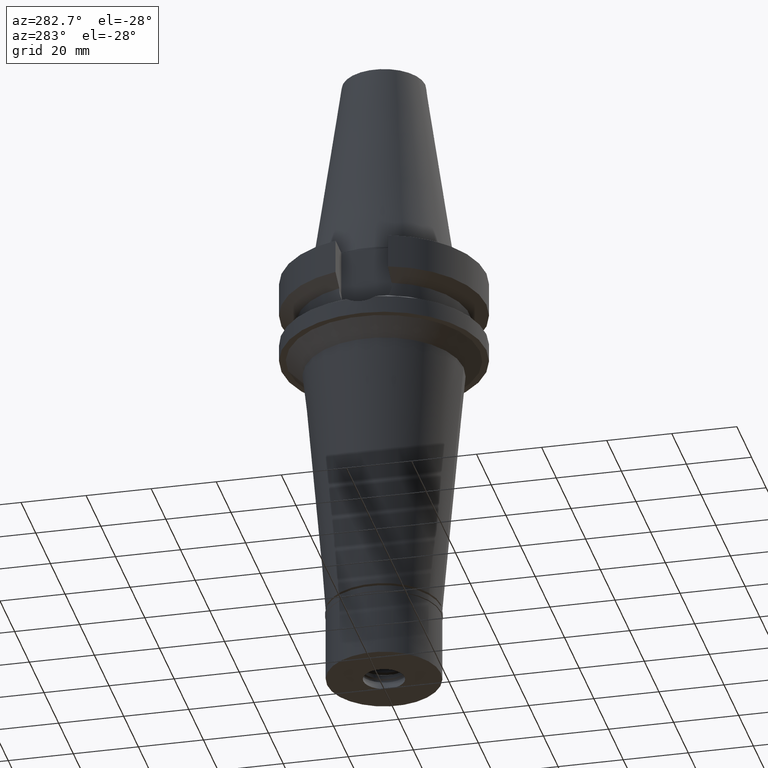
[diagram: clean part render]
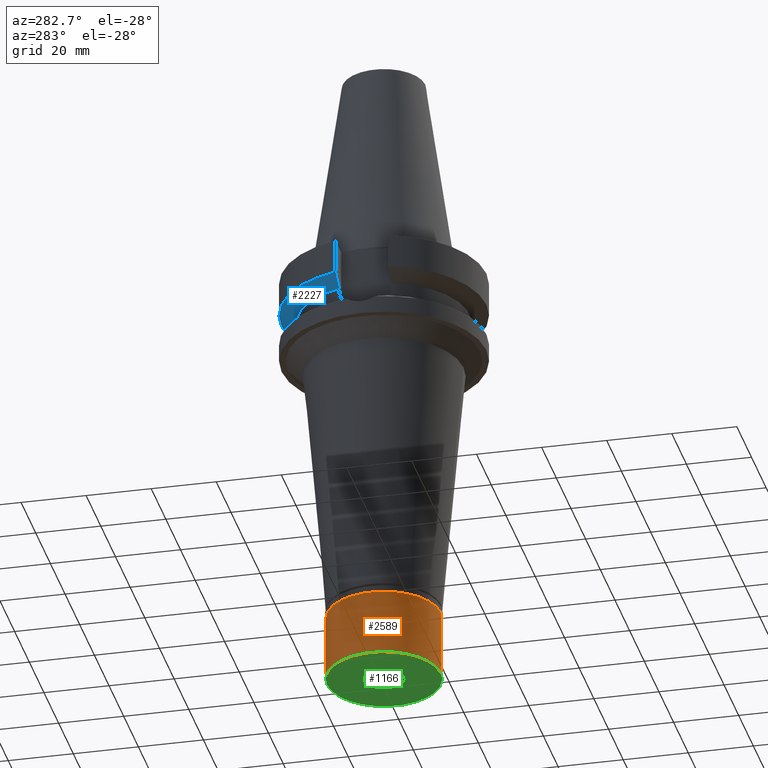
[diagram: same view with three faces highlighted in distinct colors, each labeled with its STEP entity id]
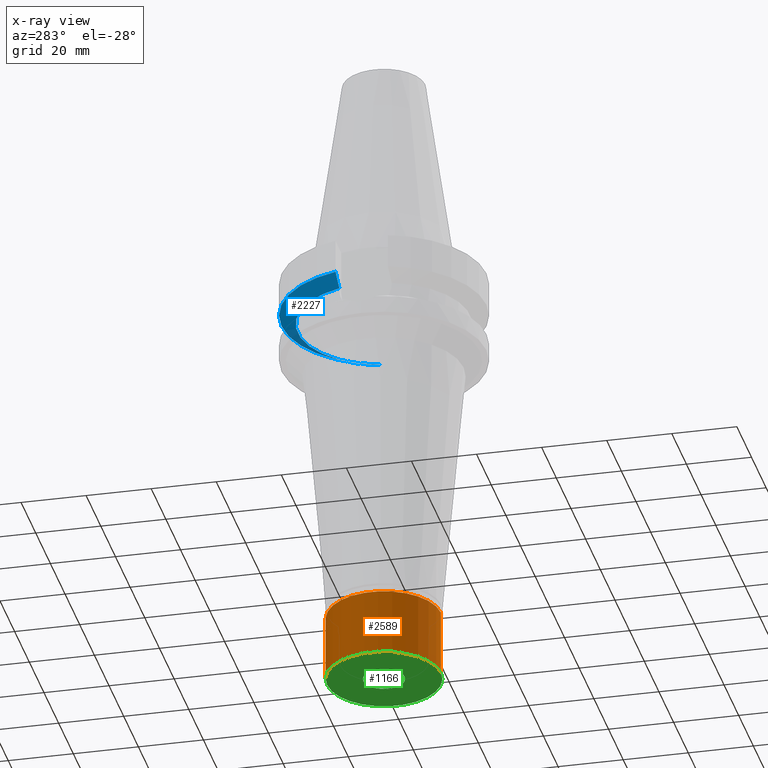
[diagram: x-ray of the same camera — body ghosted, the three highlighted faces saturated]
A machine part, auxiliary view with three faces highlighted in distinct colors.
The next image is the same camera in x-ray (body ghosted, the three faces saturated) — at least one of them is partly hidden behind the body in this view.
Their STEP definitions:

[orange] entity #2589 — the highlighted cylindrical surface (partial cylindrical patch) has radius 17.5 mm, axis along (0, 0, -1).
#40 = EDGE_LOOP ( 'NONE', ( #2984, #1768, #2172, #1726 ) ) ;
#71 = CARTESIAN_POINT ( 'NONE',  ( 0.0000000000000000000, -17.50000000000000000, -2.000000000000000000 ) ) ;
#181 = CARTESIAN_POINT ( 'NONE',  ( 0.0000000000000000000, 17.50000000000000000, -22.50000000000000000 ) ) ;
#218 = VERTEX_POINT ( 'NONE', #1744 ) ;
#267 = AXIS2_PLACEMENT_3D ( 'NONE', #785, #1766, #541 ) ;
#293 = CARTESIAN_POINT ( 'NONE',  ( 0.0000000000000000000, 17.50000000000000000, -2.000000000000000000 ) ) ;
#408 = DIRECTION ( 'NONE',  ( 0.0000000000000000000, 0.0000000000000000000, -1.000000000000000000 ) ) ;
#455 = LINE ( 'NONE', #2659, #3036 ) ;
#471 = VERTEX_POINT ( 'NONE', #2582 ) ;
#477 = CARTESIAN_POINT ( 'NONE',  ( 0.0000000000000000000, 0.0000000000000000000, 0.0000000000000000000 ) ) ;
#494 = VERTEX_POINT ( 'NONE', #181 ) ;
#541 = DIRECTION ( 'NONE',  ( 0.0000000000000000000, 1.000000000000000000, 0.0000000000000000000 ) ) ;
#556 = LINE ( 'NONE', #293, #2967 ) ;
#737 = DIRECTION ( 'NONE',  ( 0.0000000000000000000, -1.000000000000000000, 0.0000000000000000000 ) ) ;
#785 = CARTESIAN_POINT ( 'NONE',  ( 0.0000000000000000000, 0.0000000000000000000, -22.50000000000000000 ) ) ;
#920 = DIRECTION ( 'NONE',  ( 0.0000000000000000000, 0.0000000000000000000, -1.000000000000000000 ) ) ;
#1152 = CIRCLE ( 'NONE', #267, 17.50000000000000000 ) ;
#1208 = CYLINDRICAL_SURFACE ( 'NONE', #2407, 17.50000000000000000 ) ;
#1252 = VERTEX_POINT ( 'NONE', #71 ) ;
#1279 = EDGE_CURVE ( 'NONE', #494, #218, #1152, .T. ) ;
#1362 = DIRECTION ( 'NONE',  ( 0.0000000000000000000, -1.000000000000000000, 0.0000000000000000000 ) ) ;
#1534 = DIRECTION ( 'NONE',  ( 0.0000000000000000000, 0.0000000000000000000, -1.000000000000000000 ) ) ;
#1681 = EDGE_CURVE ( 'NONE', #1252, #218, #455, .T. ) ;
#1726 = ORIENTED_EDGE ( 'NONE', *, *, #2699, .T. ) ;
#1744 = CARTESIAN_POINT ( 'NONE',  ( 0.0000000000000000000, -17.50000000000000000, -22.50000000000000000 ) ) ;
#1766 = DIRECTION ( 'NONE',  ( 0.0000000000000000000, 0.0000000000000000000, 1.000000000000000000 ) ) ;
#1768 = ORIENTED_EDGE ( 'NONE', *, *, #1681, .F. ) ;
#1824 = CARTESIAN_POINT ( 'NONE',  ( 0.0000000000000000000, 0.0000000000000000000, -2.000000000000000000 ) ) ;
#1919 = EDGE_CURVE ( 'NONE', #1252, #471, #2121, .T. ) ;
#2029 = DIRECTION ( 'NONE',  ( 0.0000000000000000000, 0.0000000000000000000, -1.000000000000000000 ) ) ;
#2121 = CIRCLE ( 'NONE', #2276, 17.50000000000000000 ) ;
#2172 = ORIENTED_EDGE ( 'NONE', *, *, #1919, .T. ) ;
#2276 = AXIS2_PLACEMENT_3D ( 'NONE', #1824, #1534, #1362 ) ;
#2350 = FACE_OUTER_BOUND ( 'NONE', #40, .T. ) ;
#2407 = AXIS2_PLACEMENT_3D ( 'NONE', #477, #408, #737 ) ;
#2582 = CARTESIAN_POINT ( 'NONE',  ( 0.0000000000000000000, 17.50000000000000000, -2.000000000000000000 ) ) ;
#2589 = ADVANCED_FACE ( 'NONE', ( #2350 ), #1208, .T. ) ;
#2659 = CARTESIAN_POINT ( 'NONE',  ( 0.0000000000000000000, -17.50000000000000000, -2.000000000000000000 ) ) ;
#2699 = EDGE_CURVE ( 'NONE', #471, #494, #556, .T. ) ;
#2967 = VECTOR ( 'NONE', #2029, 1000.000000000000000 ) ;
#2984 = ORIENTED_EDGE ( 'NONE', *, *, #1279, .T. ) ;
#3036 = VECTOR ( 'NONE', #920, 1000.000000000000000 ) ;

[blue] entity #2227 — the highlighted conical surface has half-angle 60 deg.
#28 = DIRECTION ( 'NONE',  ( 0.0000000000000000000, 1.000000000000000000, 0.0000000000000000000 ) ) ;
#41 = ORIENTED_EDGE ( 'NONE', *, *, #890, .F. ) ;
#204 = VERTEX_POINT ( 'NONE', #2745 ) ;
#259 = ORIENTED_EDGE ( 'NONE', *, *, #1004, .F. ) ;
#284 = DIRECTION ( 'NONE',  ( 0.0000000000000000000, 0.0000000000000000000, 1.000000000000000000 ) ) ;
#354 = CARTESIAN_POINT ( 'NONE',  ( 0.0000000000000000000, 1.065333950388000029E-14, -14.45225699861000024 ) ) ;
#384 = CARTESIAN_POINT ( 'NONE',  ( 26.83754617027986100, 8.049990822442618210, -13.57774887527135554 ) ) ;
#469 = CARTESIAN_POINT ( 'NONE',  ( -28.57295871290481060, 8.050008282117520508, -12.61547480398390064 ) ) ;
#473 = ORIENTED_EDGE ( 'NONE', *, *, #1392, .T. ) ;
#657 = CARTESIAN_POINT ( 'NONE',  ( -30.45402162749999775, 8.050004143576002136, -11.56546832909999978 ) ) ;
#728 = CARTESIAN_POINT ( 'NONE',  ( 0.0000000000000000000, 1.065333950388000029E-14, -13.00888132564000088 ) ) ;
#834 = CARTESIAN_POINT ( 'NONE',  ( 28.57292330019661009, 8.049998556417881090, -12.61549604993788343 ) ) ;
#890 = EDGE_CURVE ( 'NONE', #1746, #204, #896, .T. ) ;
#896 = CIRCLE ( 'NONE', #2154, 26.50000000000000711 ) ;
#999 = B_SPLINE_CURVE_WITH_KNOTS ( 'NONE', 3,
 ( #2543, #834, #384, #1352 ),
 .UNSPECIFIED., .F., .F.,
 ( 4, 4 ),
 ( 0.0000000000000000000, 1.000000000000000000 ),
 .UNSPECIFIED. ) ;
#1004 = EDGE_CURVE ( 'NONE', #1117, #2134, #2780, .T. ) ;
#1084 = CONICAL_SURFACE ( 'NONE', #1736, 29.00000000000000000, 1.047197551196400456 ) ;
#1117 = VERTEX_POINT ( 'NONE', #1171 ) ;
#1171 = CARTESIAN_POINT ( 'NONE',  ( 30.45402291369999759, 8.049999277737999392, -11.56551215793000154 ) ) ;
#1197 = CARTESIAN_POINT ( 'NONE',  ( 0.0000000000000000000, 1.065333950388000029E-14, -11.56550565266999975 ) ) ;
#1352 = CARTESIAN_POINT ( 'NONE',  ( 25.24772413104999913, 8.049995416295999462, -14.45229202408999925 ) ) ;
#1392 = EDGE_CURVE ( 'NONE', #1117, #204, #999, .T. ) ;
#1662 = ORIENTED_EDGE ( 'NONE', *, *, #1692, .T. ) ;
#1692 = EDGE_CURVE ( 'NONE', #1746, #2134, #1764, .T. ) ;
#1736 = AXIS2_PLACEMENT_3D ( 'NONE', #728, #284, #28 ) ;
#1746 = VERTEX_POINT ( 'NONE', #2706 ) ;
#1764 = B_SPLINE_CURVE_WITH_KNOTS ( 'NONE', 3,
 ( #2402, #2159, #469, #3142 ),
 .UNSPECIFIED., .F., .F.,
 ( 4, 4 ),
 ( 0.0000000000000000000, 1.000000000000000000 ),
 .UNSPECIFIED. ) ;
#1914 = DIRECTION ( 'NONE',  ( 0.0000000000000000000, 1.000000000000000000, 0.0000000000000000000 ) ) ;
#2109 = DIRECTION ( 'NONE',  ( 0.0000000000000000000, 0.0000000000000000000, -1.000000000000000000 ) ) ;
#2117 = AXIS2_PLACEMENT_3D ( 'NONE', #1197, #2664, #1914 ) ;
#2134 = VERTEX_POINT ( 'NONE', #657 ) ;
#2154 = AXIS2_PLACEMENT_3D ( 'NONE', #354, #2109, #3037 ) ;
#2159 = CARTESIAN_POINT ( 'NONE',  ( -26.83758148222326412, 8.050003176126917737, -13.57772735283707277 ) ) ;
#2169 = FACE_OUTER_BOUND ( 'NONE', #3095, .T. ) ;
#2227 = ADVANCED_FACE ( 'NONE', ( #2169 ), #1084, .T. ) ;
#2402 = CARTESIAN_POINT ( 'NONE',  ( -25.24772216379000156, 8.050001586350001404, -14.45224487750000186 ) ) ;
#2543 = CARTESIAN_POINT ( 'NONE',  ( 30.45402291369999759, 8.049999277737999392, -11.56551215793000154 ) ) ;
#2664 = DIRECTION ( 'NONE',  ( 0.0000000000000000000, 0.0000000000000000000, 1.000000000000000000 ) ) ;
#2706 = CARTESIAN_POINT ( 'NONE',  ( -25.24772216379000156, 8.050001586350001404, -14.45224487750000186 ) ) ;
#2745 = CARTESIAN_POINT ( 'NONE',  ( 25.24772413104999913, 8.049995416295999462, -14.45229202408999925 ) ) ;
#2780 = CIRCLE ( 'NONE', #2117, 31.50000000000000000 ) ;
#3037 = DIRECTION ( 'NONE',  ( -0.9527442516822307583, 0.3037735849057093818, 0.0000000000000000000 ) ) ;
#3095 = EDGE_LOOP ( 'NONE', ( #259, #473, #41, #1662 ) ) ;
#3142 = CARTESIAN_POINT ( 'NONE',  ( -30.45402162749999775, 8.050004143576002136, -11.56546832909999978 ) ) ;

[green] entity #1166 — the highlighted planar face has unit normal (0, 0, -1).
#181 = CARTESIAN_POINT ( 'NONE',  ( 0.0000000000000000000, 17.50000000000000000, -22.50000000000000000 ) ) ;
#214 = DIRECTION ( 'NONE',  ( 0.0000000000000000000, 0.0000000000000000000, -1.000000000000000000 ) ) ;
#218 = VERTEX_POINT ( 'NONE', #1744 ) ;
#267 = AXIS2_PLACEMENT_3D ( 'NONE', #785, #1766, #541 ) ;
#302 = DIRECTION ( 'NONE',  ( 0.0000000000000000000, 0.0000000000000000000, 1.000000000000000000 ) ) ;
#326 = EDGE_CURVE ( 'NONE', #218, #494, #472, .T. ) ;
#374 = CARTESIAN_POINT ( 'NONE',  ( 0.0000000000000000000, 0.0000000000000000000, -22.50000000000000000 ) ) ;
#472 = CIRCLE ( 'NONE', #2517, 17.50000000000000000 ) ;
#481 = AXIS2_PLACEMENT_3D ( 'NONE', #751, #1000, #1779 ) ;
#494 = VERTEX_POINT ( 'NONE', #181 ) ;
#541 = DIRECTION ( 'NONE',  ( 0.0000000000000000000, 1.000000000000000000, 0.0000000000000000000 ) ) ;
#751 = CARTESIAN_POINT ( 'NONE',  ( 0.0000000000000000000, 0.0000000000000000000, -22.50000000000000000 ) ) ;
#774 = CARTESIAN_POINT ( 'NONE',  ( 0.0000000000000000000, -6.349999999998999556, -22.50000000000000000 ) ) ;
#785 = CARTESIAN_POINT ( 'NONE',  ( 0.0000000000000000000, 0.0000000000000000000, -22.50000000000000000 ) ) ;
#912 = CARTESIAN_POINT ( 'NONE',  ( 0.0000000000000000000, 6.349999999998999556, -22.50000000000000000 ) ) ;
#963 = ORIENTED_EDGE ( 'NONE', *, *, #1536, .F. ) ;
#975 = AXIS2_PLACEMENT_3D ( 'NONE', #2312, #1342, #1074 ) ;
#1000 = DIRECTION ( 'NONE',  ( 0.0000000000000000000, 0.0000000000000000000, -1.000000000000000000 ) ) ;
#1074 = DIRECTION ( 'NONE',  ( 0.0000000000000000000, 1.000000000000000000, 0.0000000000000000000 ) ) ;
#1082 = VERTEX_POINT ( 'NONE', #912 ) ;
#1094 = ORIENTED_EDGE ( 'NONE', *, *, #326, .F. ) ;
#1152 = CIRCLE ( 'NONE', #267, 17.50000000000000000 ) ;
#1166 = ADVANCED_FACE ( 'NONE', ( #1678, #1207 ), #2176, .T. ) ;
#1207 = FACE_BOUND ( 'NONE', #1711, .T. ) ;
#1279 = EDGE_CURVE ( 'NONE', #494, #218, #1152, .T. ) ;
#1301 = EDGE_LOOP ( 'NONE', ( #2576, #1094 ) ) ;
#1342 = DIRECTION ( 'NONE',  ( 0.0000000000000000000, 0.0000000000000000000, -1.000000000000000000 ) ) ;
#1536 = EDGE_CURVE ( 'NONE', #2285, #1082, #2530, .T. ) ;
#1678 = FACE_OUTER_BOUND ( 'NONE', #1301, .T. ) ;
#1711 = EDGE_LOOP ( 'NONE', ( #2997, #963 ) ) ;
#1744 = CARTESIAN_POINT ( 'NONE',  ( 0.0000000000000000000, -17.50000000000000000, -22.50000000000000000 ) ) ;
#1766 = DIRECTION ( 'NONE',  ( 0.0000000000000000000, 0.0000000000000000000, 1.000000000000000000 ) ) ;
#1779 = DIRECTION ( 'NONE',  ( 0.0000000000000000000, -1.000000000000000000, 0.0000000000000000000 ) ) ;
#1877 = DIRECTION ( 'NONE',  ( 0.0000000000000000000, -1.000000000000000000, 0.0000000000000000000 ) ) ;
#2176 = PLANE ( 'NONE',  #481 ) ;
#2285 = VERTEX_POINT ( 'NONE', #774 ) ;
#2312 = CARTESIAN_POINT ( 'NONE',  ( 0.0000000000000000000, 0.0000000000000000000, -22.50000000000000000 ) ) ;
#2409 = CIRCLE ( 'NONE', #975, 6.349999999998999556 ) ;
#2472 = AXIS2_PLACEMENT_3D ( 'NONE', #2892, #214, #1877 ) ;
#2517 = AXIS2_PLACEMENT_3D ( 'NONE', #374, #302, #2813 ) ;
#2530 = CIRCLE ( 'NONE', #2472, 6.349999999998999556 ) ;
#2576 = ORIENTED_EDGE ( 'NONE', *, *, #1279, .F. ) ;
#2813 = DIRECTION ( 'NONE',  ( 0.0000000000000000000, -1.000000000000000000, 0.0000000000000000000 ) ) ;
#2892 = CARTESIAN_POINT ( 'NONE',  ( 0.0000000000000000000, 0.0000000000000000000, -22.50000000000000000 ) ) ;
#2997 = ORIENTED_EDGE ( 'NONE', *, *, #3100, .F. ) ;
#3100 = EDGE_CURVE ( 'NONE', #1082, #2285, #2409, .T. ) ;